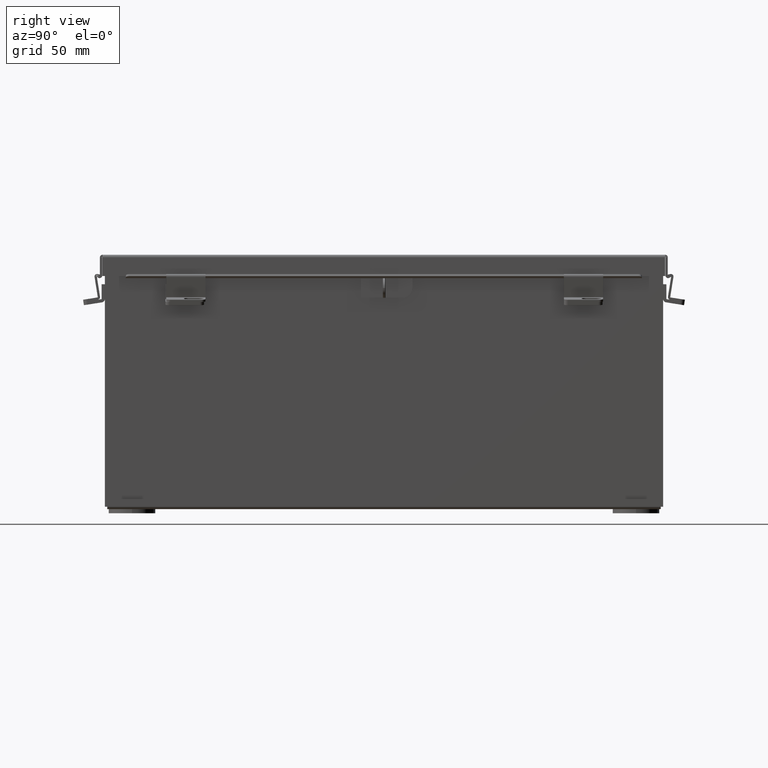
[diagram: clean part render]
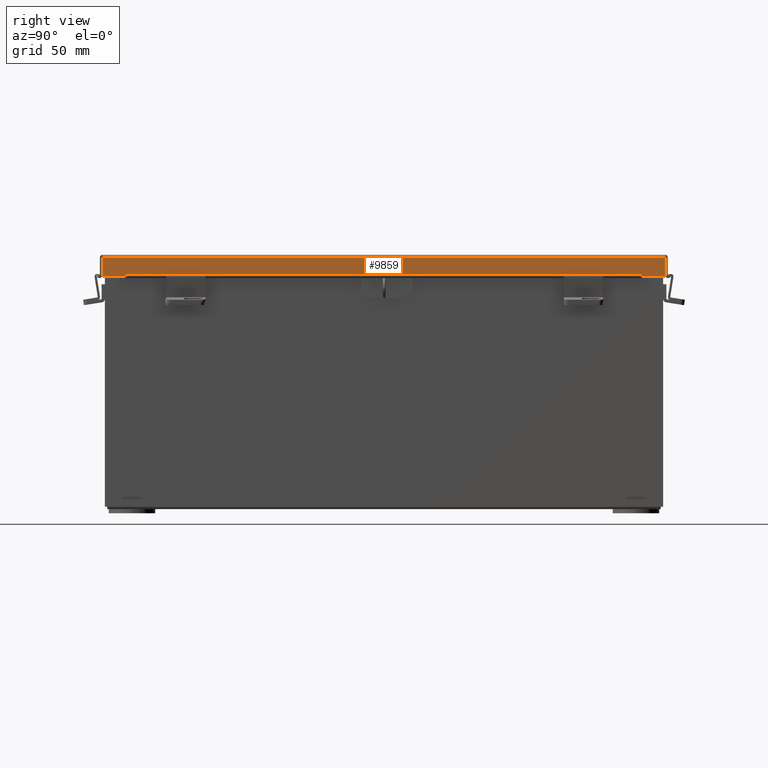
[diagram: same view with one face highlighted and labeled with its STEP entity id]
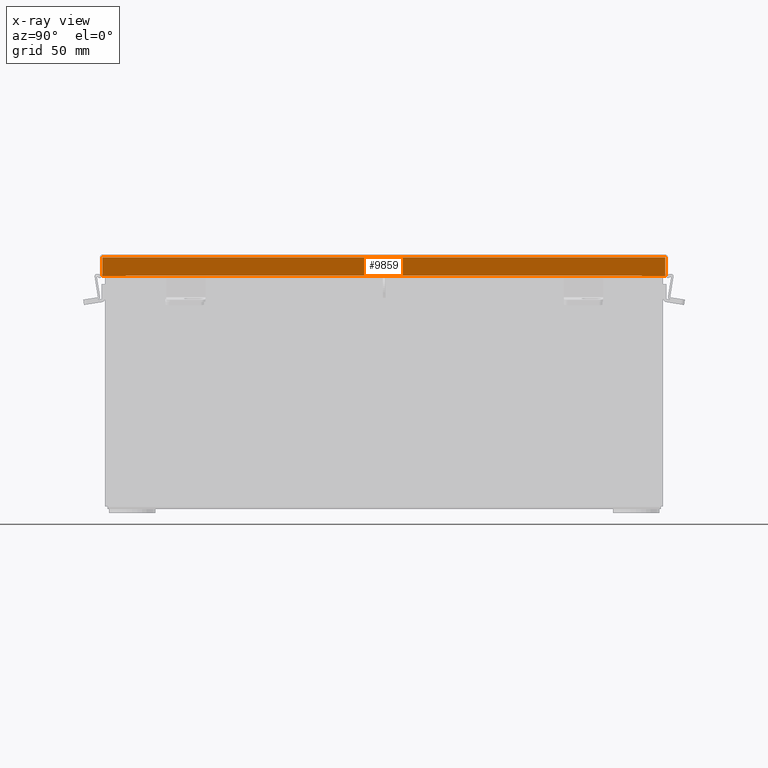
[diagram: x-ray of the same camera — body ghosted, the highlighted face saturated]
A machine part, right view. The second image highlights one B-rep face of the part: STEP entity #9859.
The next image is the same camera in x-ray: the body ghosted, the highlighted face saturated — about 0% of this face is hidden behind the body in this view.
In plain terms, the highlighted planar face has unit normal (-1, 0, -0).
Its self-contained STEP definition (entity closure, byte-faithful):
#15 = VERTEX_POINT ( 'NONE', #10656 ) ;
#473 = VECTOR ( 'NONE', #1239, 39.37007874015748100 ) ;
#547 = CARTESIAN_POINT ( 'NONE',  ( -4.156250000000027500, 8.324478932188132100, 0.5967115427318782100 ) ) ;
#1239 = DIRECTION ( 'NONE',  ( -3.569293475308541900E-015, -1.027984367116126100E-029, 1.000000000000000000 ) ) ;
#1280 = ORIENTED_EDGE ( 'NONE', *, *, #5665, .F. ) ;
#1576 = LINE ( 'NONE', #11489, #16941 ) ;
#1658 = VERTEX_POINT ( 'NONE', #8616 ) ;
#1694 = LINE ( 'NONE', #547, #13555 ) ;
#2074 = VERTEX_POINT ( 'NONE', #13759 ) ;
#2219 = EDGE_CURVE ( 'NONE', #18854, #9744, #8998, .T. ) ;
#2879 = DIRECTION ( 'NONE',  ( -1.397845774373051600E-030, 1.000000000000000000, 2.983588252465072900E-017 ) ) ;
#2925 = VECTOR ( 'NONE', #2879, 39.37007874015748100 ) ;
#3110 = ORIENTED_EDGE ( 'NONE', *, *, #16751, .F. ) ;
#3347 = CARTESIAN_POINT ( 'NONE',  ( -4.156250000000026600, 8.324478932188132100, 0.5967115427318782100 ) ) ;
#3567 = ORIENTED_EDGE ( 'NONE', *, *, #3987, .T. ) ;
#3911 = DIRECTION ( 'NONE',  ( -1.278004435517692100E-030, 1.000000000000000000, -1.018123605800868400E-029 ) ) ;
#3987 = EDGE_CURVE ( 'NONE', #15, #18854, #4410, .T. ) ;
#4410 = LINE ( 'NONE', #16041, #473 ) ;
#4433 = CARTESIAN_POINT ( 'NONE',  ( -4.156250000000017800, 9.156250000000000000, 0.01300000000000447800 ) ) ;
#5665 = EDGE_CURVE ( 'NONE', #1658, #9744, #1576, .T. ) ;
#5918 = CARTESIAN_POINT ( 'NONE',  ( -4.156250000000017800, 9.074478932188133800, 0.01300000000000447800 ) ) ;
#6136 = ORIENTED_EDGE ( 'NONE', *, *, #8163, .T. ) ;
#6143 = DIRECTION ( 'NONE',  ( 3.569293475308541900E-015, 1.027984367116126100E-029, -1.000000000000000000 ) ) ;
#6451 = EDGE_CURVE ( 'NONE', #15, #17876, #10832, .T. ) ;
#7105 = VECTOR ( 'NONE', #7475, 39.37007874015748100 ) ;
#7267 = VERTEX_POINT ( 'NONE', #7842 ) ;
#7475 = DIRECTION ( 'NONE',  ( -3.569293475308541900E-015, -1.027984367116126100E-029, 1.000000000000000000 ) ) ;
#7519 = VECTOR ( 'NONE', #3911, 39.37007874015748100 ) ;
#7842 = CARTESIAN_POINT ( 'NONE',  ( -4.156250000000024900, 9.074478932188133800, 0.6123000000000005100 ) ) ;
#8163 = EDGE_CURVE ( 'NONE', #2074, #7267, #15923, .T. ) ;
#8616 = CARTESIAN_POINT ( 'NONE',  ( -4.156250000000026600, -8.324478932188130300, 0.5967115427318782100 ) ) ;
#8687 = FACE_OUTER_BOUND ( 'NONE', #10651, .T. ) ;
#8753 = EDGE_CURVE ( 'NONE', #18046, #1658, #1694, .T. ) ;
#8998 = LINE ( 'NONE', #18085, #12483 ) ;
#9069 = CARTESIAN_POINT ( 'NONE',  ( -4.156250000000022200, 5.869204673888065100E-018, -1.420560956705417000E-014 ) ) ;
#9744 = VERTEX_POINT ( 'NONE', #14570 ) ;
#9859 = ADVANCED_FACE ( 'NONE', ( #8687 ), #13576, .F. ) ;
#10651 = EDGE_LOOP ( 'NONE', ( #3110, #6136, #16085, #18025, #3567, #10791, #1280, #13625 ) ) ;
#10656 = CARTESIAN_POINT ( 'NONE',  ( -4.156250000000022200, -9.074478932188133800, 0.01300000000000010700 ) ) ;
#10791 = ORIENTED_EDGE ( 'NONE', *, *, #2219, .T. ) ;
#10832 = LINE ( 'NONE', #4433, #2925 ) ;
#11147 = VECTOR ( 'NONE', #16609, 39.37007874015748100 ) ;
#11298 = CARTESIAN_POINT ( 'NONE',  ( -4.156250000000024900, -4.802076551362963100E-018, 0.6123000000000005100 ) ) ;
#11489 = CARTESIAN_POINT ( 'NONE',  ( -4.156250000000027500, -8.324478932188130300, 0.5967115427318782100 ) ) ;
#12129 = CARTESIAN_POINT ( 'NONE',  ( -4.156250000000026600, 8.324478932188132100, 0.6122999999999994000 ) ) ;
#12483 = VECTOR ( 'NONE', #14506, 39.37007874015748100 ) ;
#13386 = CARTESIAN_POINT ( 'NONE',  ( -4.156250000000022200, 9.074478932188133800, 4.370956789862821100E-015 ) ) ;
#13555 = VECTOR ( 'NONE', #15392, 39.37007874015748100 ) ;
#13576 = PLANE ( 'NONE',  #14009 ) ;
#13625 = ORIENTED_EDGE ( 'NONE', *, *, #8753, .F. ) ;
#13759 = CARTESIAN_POINT ( 'NONE',  ( -4.156250000000024900, 8.324478932188132100, 0.6123000000000005100 ) ) ;
#14009 = AXIS2_PLACEMENT_3D ( 'NONE', #9069, #15084, #6143 ) ;
#14506 = DIRECTION ( 'NONE',  ( -1.278004435517692100E-030, 1.000000000000000000, -1.018123605800868400E-029 ) ) ;
#14570 = CARTESIAN_POINT ( 'NONE',  ( -4.156250000000024900, -8.324478932188132100, 0.6123000000000005100 ) ) ;
#14672 = LINE ( 'NONE', #12129, #11147 ) ;
#15044 = LINE ( 'NONE', #13386, #7105 ) ;
#15084 = DIRECTION ( 'NONE',  ( 1.000000000000000000, -1.298550277298193100E-030, 3.569293475308541900E-015 ) ) ;
#15392 = DIRECTION ( 'NONE',  ( 1.278004435517692100E-030, -1.000000000000000000, 1.018123605800868400E-029 ) ) ;
#15923 = LINE ( 'NONE', #11298, #7519 ) ;
#16041 = CARTESIAN_POINT ( 'NONE',  ( -4.156250000000027500, -9.074478932188133800, -1.420560956705417000E-014 ) ) ;
#16085 = ORIENTED_EDGE ( 'NONE', *, *, #19140, .F. ) ;
#16609 = DIRECTION ( 'NONE',  ( 1.051488783018094100E-013, 1.027984367116126200E-029, -1.000000000000000000 ) ) ;
#16751 = EDGE_CURVE ( 'NONE', #2074, #18046, #14672, .T. ) ;
#16941 = VECTOR ( 'NONE', #19073, 39.37007874015748100 ) ;
#17876 = VERTEX_POINT ( 'NONE', #5918 ) ;
#18025 = ORIENTED_EDGE ( 'NONE', *, *, #6451, .F. ) ;
#18046 = VERTEX_POINT ( 'NONE', #3347 ) ;
#18085 = CARTESIAN_POINT ( 'NONE',  ( -4.156250000000024900, -4.802076551362963100E-018, 0.6123000000000005100 ) ) ;
#18808 = CARTESIAN_POINT ( 'NONE',  ( -4.156250000000029300, -9.074478932188133800, 0.6123000000000015100 ) ) ;
#18854 = VERTEX_POINT ( 'NONE', #18808 ) ;
#19073 = DIRECTION ( 'NONE',  ( -3.504962610060183800E-014, -7.009925220120350000E-014, 1.000000000000000000 ) ) ;
#19140 = EDGE_CURVE ( 'NONE', #17876, #7267, #15044, .T. ) ;